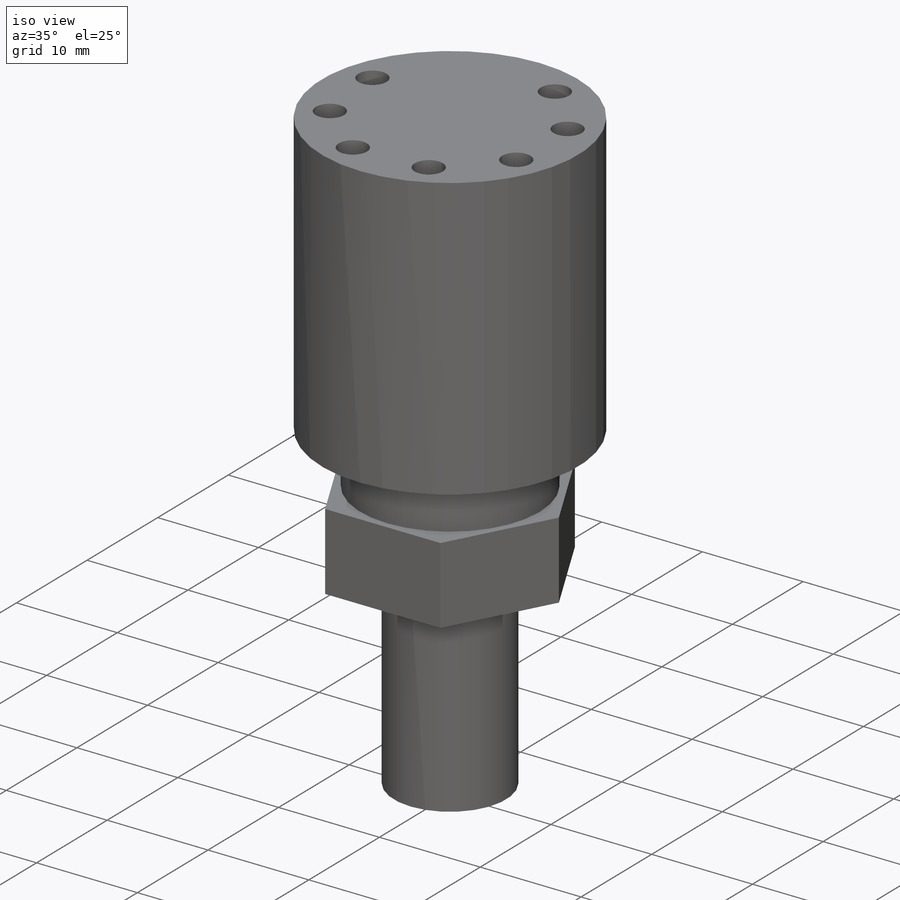
[diagram: iso view]
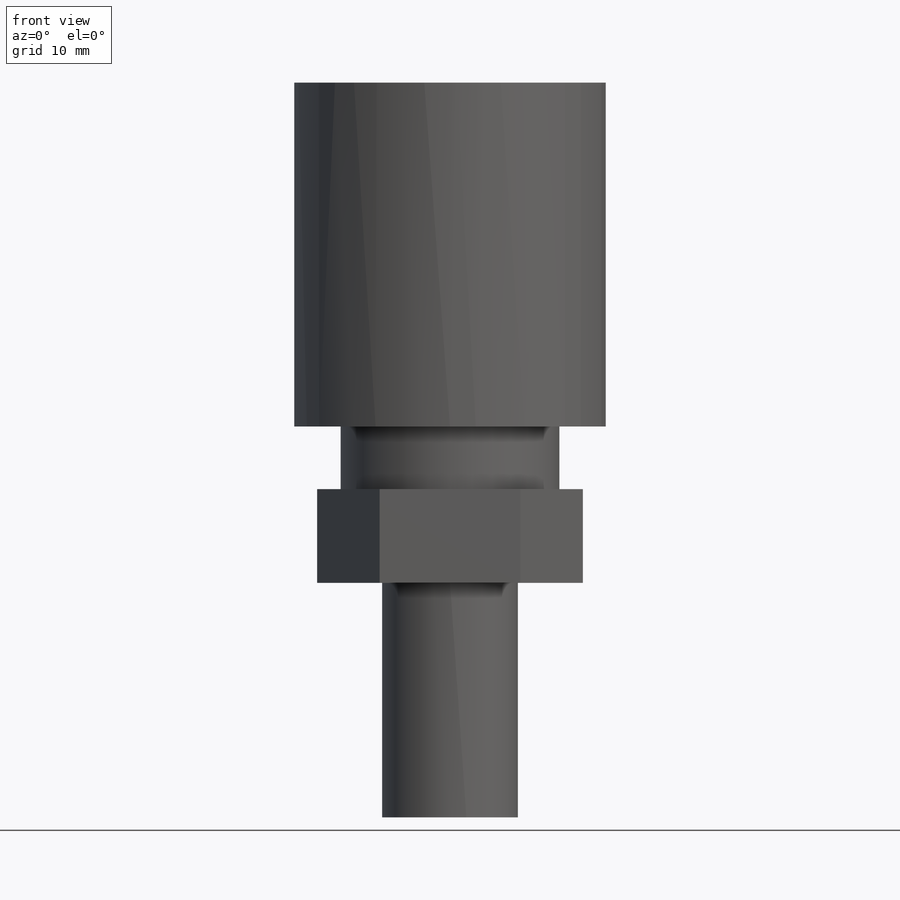
[diagram: front view]
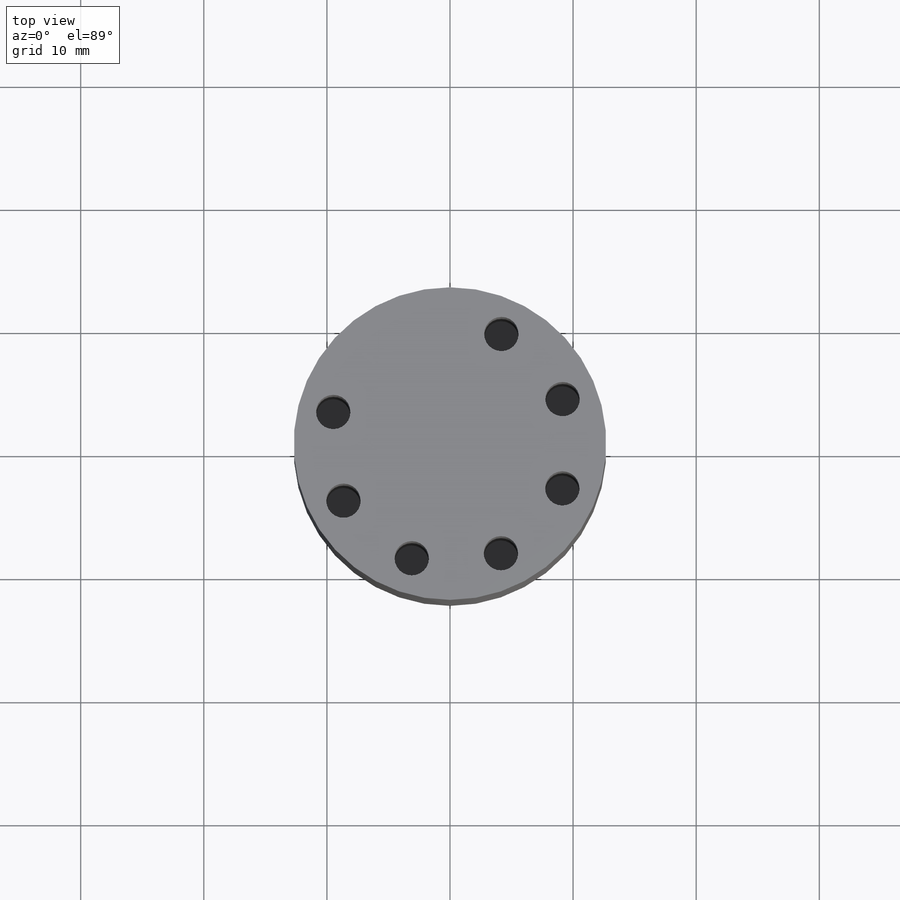
[diagram: top view]
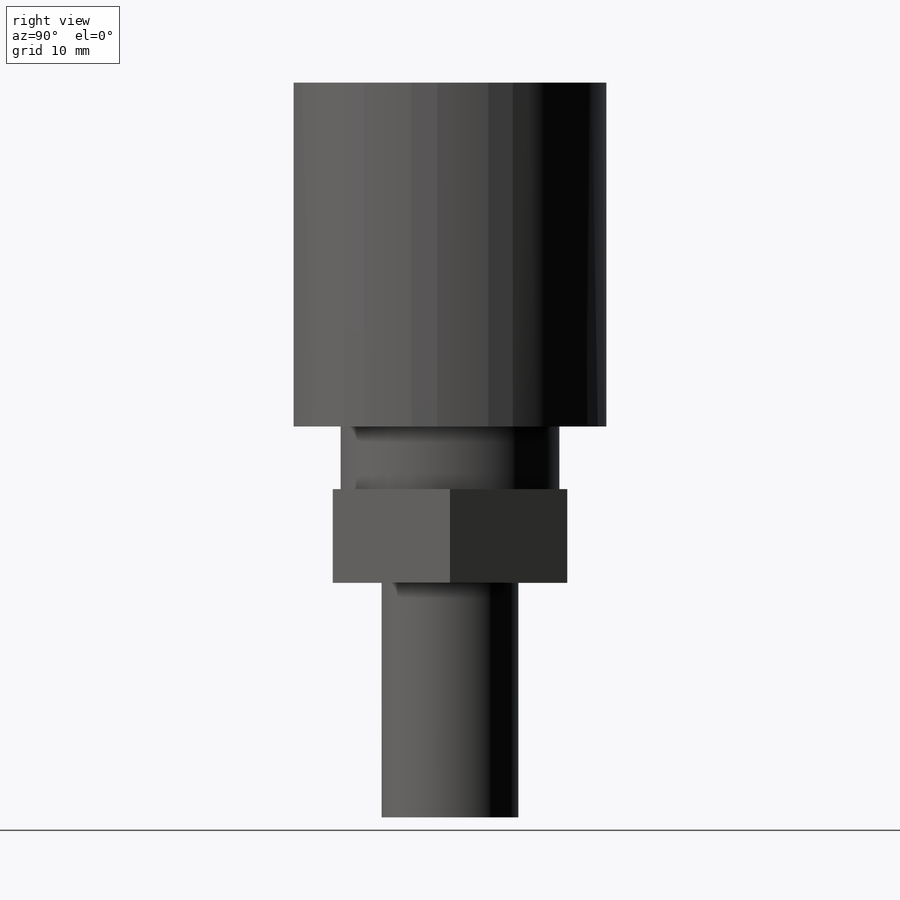
[diagram: right view]
SOLIDWORKS PART (.sldprt)
format: sldprt  version: not decoded by parser v0  size: 208,896 bytes
history: native  units: mm
features: sketch x5, extrude x4, material x1, thread x1, cut_extrude x1 (+11 scaffold rows collapsed)
feature tree (23):
  scaffold x11  (default folders/planes/origin — collapsed)
  material  "Material <not specified>"
  sketch  "Sketch1"  dims[D1=17.78mm]
  extrude  "Boss-Extrude1"  Depth=5.08mm
  sketch  "Sketch2"  dims[c1.D1=19.05mm c2.D1=~4.272423mm c3.D1=~130.420603deg c3.D2=36.6522mm c3.D3=31.75mm c3.D4=~36.246843mm c4.D2=~17.486313mm c5.D2=~17.801421deg c6.D2=31.75mm c6.D4=31.75mm c6.D5=~20.308994mm c7.D2=21.59mm]
  extrude  "Boss-Extrude2"  Depth=7.62mm
  sketch  "Sketch3"  dims[D1=11.1125mm]
  extrude  "Boss-Extrude3"  [1 undecoded]
  thread  "Cosmetic Thread1"  Diameter=9.6012mm  [1 undecoded]
  sketch  "Sketch4"  dims[D1=25.4mm]
  extrude  "Boss-Extrude4"  Depth=27.94mm
  sketch  "Sketch5"  dims[D1=2.794mm D2=7.0]
  cut_extrude  "Cut-Extrude1"  Depth=20.32mm
decode coverage: 10 of 11 modeling features carry decoded parameters
note: ~ marks probable driven/reference dimensions
note: 2 parameter values undecoded
note: suppression state not decoded; provenance and decode notes live in map.json
